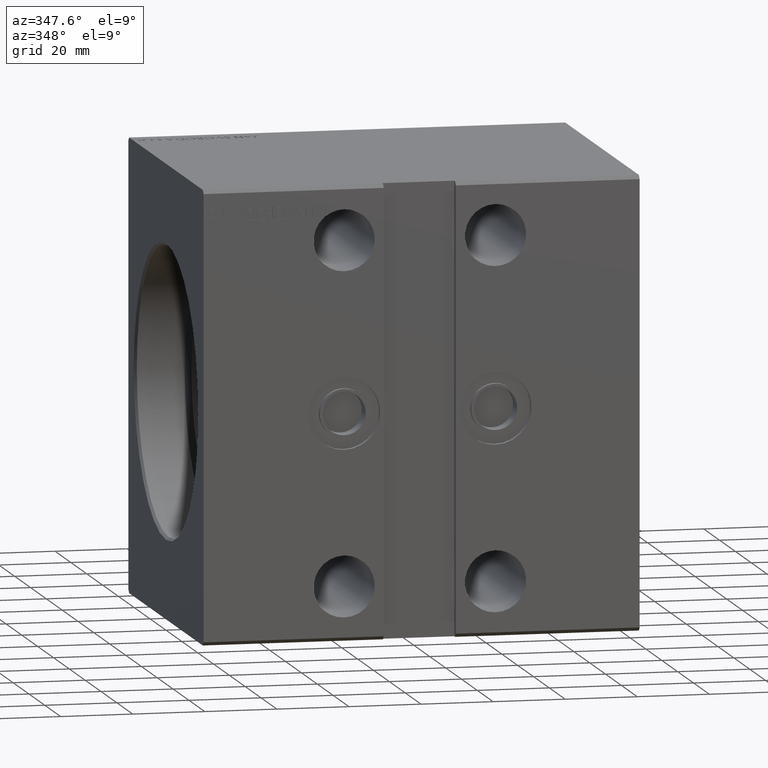
[diagram: clean part render]
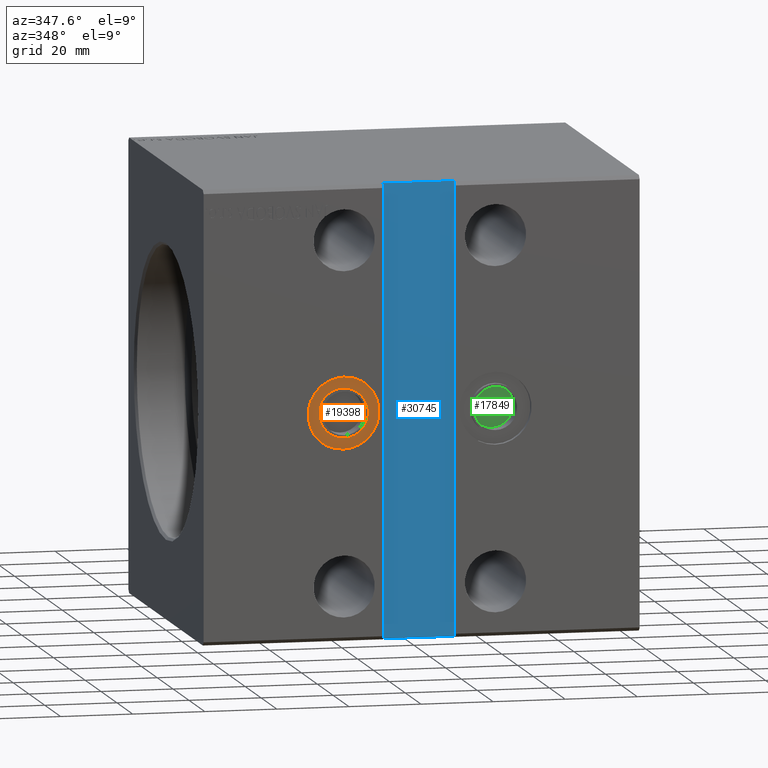
[diagram: same view with three faces highlighted in distinct colors, each labeled with its STEP entity id]
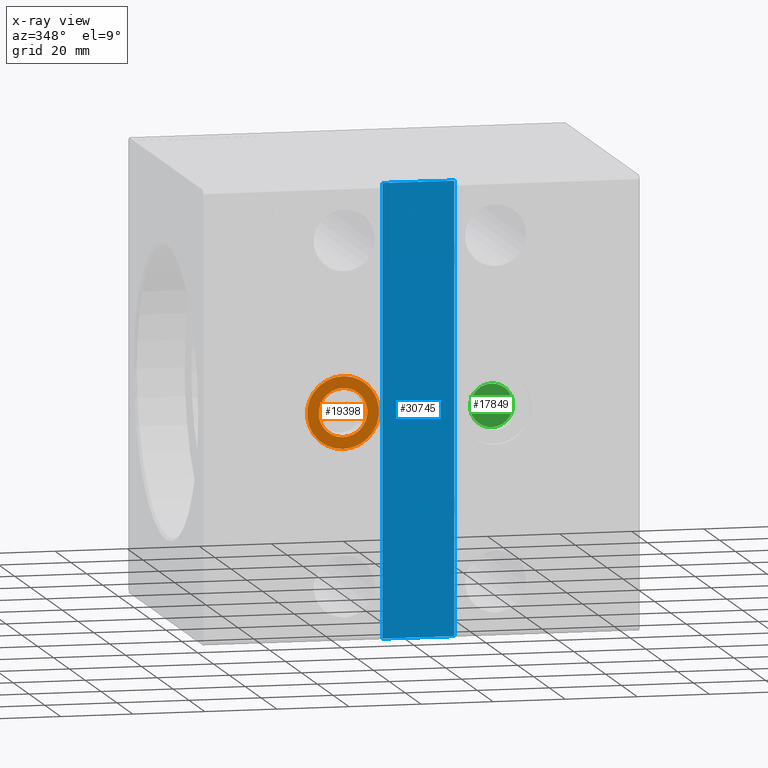
[diagram: x-ray of the same camera — body ghosted, the three highlighted faces saturated]
A machine part, auxiliary view with three faces highlighted in distinct colors.
The next image is the same camera in x-ray (body ghosted, the three faces saturated) — at least one of them is partly hidden behind the body in this view.
Their STEP definitions:

[orange] entity #19398 — the highlighted planar face has unit normal (0, -1, -0).
#622 = VERTEX_POINT ( 'NONE', #8595 ) ;
#3005 = ORIENTED_EDGE ( 'NONE', *, *, #29788, .T. ) ;
#4802 = CARTESIAN_POINT ( 'NONE',  ( 39.00000000000000000, -46.10000000000000853, -10.00000000000001599 ) ) ;
#5205 = CARTESIAN_POINT ( 'NONE',  ( 39.00000000000000000, -46.10000000000000853, -1.490075753240132338E-14 ) ) ;
#5965 = ORIENTED_EDGE ( 'NONE', *, *, #36253, .T. ) ;
#6769 = VERTEX_POINT ( 'NONE', #24216 ) ;
#8158 = CARTESIAN_POINT ( 'NONE',  ( 39.00000000000000000, -46.10000000000000853, -1.490075753240132338E-14 ) ) ;
#8595 = CARTESIAN_POINT ( 'NONE',  ( 39.00000000000000000, -46.10000000000000853, 9.999999999999984013 ) ) ;
#8985 = DIRECTION ( 'NONE',  ( 0.000000000000000000, -1.000000000000000000, -5.507058653894625853E-17 ) ) ;
#11080 = CARTESIAN_POINT ( 'NONE',  ( 39.00000000000000000, -46.10000000000000853, -1.490075753240132338E-14 ) ) ;
#11364 = DIRECTION ( 'NONE',  ( 0.000000000000000000, -1.000000000000000000, -5.507058653894625853E-17 ) ) ;
#11554 = DIRECTION ( 'NONE',  ( 0.000000000000000000, 0.000000000000000000, -1.000000000000000000 ) ) ;
#11699 = DIRECTION ( 'NONE',  ( 0.000000000000000000, -1.000000000000000000, -5.507058653894625853E-17 ) ) ;
#12940 = AXIS2_PLACEMENT_3D ( 'NONE', #8158, #8985, #11554 ) ;
#13518 = ORIENTED_EDGE ( 'NONE', *, *, #22660, .F. ) ;
#13690 = DIRECTION ( 'NONE',  ( 0.000000000000000000, 0.000000000000000000, -1.000000000000000000 ) ) ;
#14102 = CARTESIAN_POINT ( 'NONE',  ( 39.00000000000000000, -46.10000000000000853, -1.490075753240132338E-14 ) ) ;
#14881 = DIRECTION ( 'NONE',  ( 0.000000000000000000, -1.000000000000000000, -5.507058653894625853E-17 ) ) ;
#15317 = FACE_BOUND ( 'NONE', #18952, .T. ) ;
#15519 = DIRECTION ( 'NONE',  ( 0.000000000000000000, 5.507058653894625853E-17, -1.000000000000000000 ) ) ;
#17676 = CIRCLE ( 'NONE', #12940, 10.00000000000000000 ) ;
#17809 = CIRCLE ( 'NONE', #33401, 10.00000000000000000 ) ;
#18134 = DIRECTION ( 'NONE',  ( 0.000000000000000000, 0.000000000000000000, -1.000000000000000000 ) ) ;
#18701 = DIRECTION ( 'NONE',  ( 0.000000000000000000, -1.000000000000000000, -5.507058653894625853E-17 ) ) ;
#18952 = EDGE_LOOP ( 'NONE', ( #29612, #13518 ) ) ;
#19398 = ADVANCED_FACE ( 'NONE', ( #15317, #34858 ), #38251, .T. ) ;
#19989 = CIRCLE ( 'NONE', #30822, 6.750000000000000000 ) ;
#22175 = EDGE_CURVE ( 'NONE', #24519, #6769, #19989, .T. ) ;
#22660 = EDGE_CURVE ( 'NONE', #6769, #24519, #28119, .T. ) ;
#24216 = CARTESIAN_POINT ( 'NONE',  ( 39.00000000000000000, -46.10000000000000853, 6.749999999999984901 ) ) ;
#24519 = VERTEX_POINT ( 'NONE', #31238 ) ;
#27276 = VERTEX_POINT ( 'NONE', #4802 ) ;
#27829 = DIRECTION ( 'NONE',  ( 0.000000000000000000, 0.000000000000000000, -1.000000000000000000 ) ) ;
#28119 = CIRCLE ( 'NONE', #35584, 6.750000000000000000 ) ;
#28471 = CARTESIAN_POINT ( 'NONE',  ( 39.00000000000000000, -46.10000000000000853, -1.490075753240132338E-14 ) ) ;
#29612 = ORIENTED_EDGE ( 'NONE', *, *, #22175, .F. ) ;
#29788 = EDGE_CURVE ( 'NONE', #622, #27276, #17809, .T. ) ;
#30822 = AXIS2_PLACEMENT_3D ( 'NONE', #5205, #11364, #18134 ) ;
#31238 = CARTESIAN_POINT ( 'NONE',  ( 39.00000000000000000, -46.10000000000000853, -6.750000000000015099 ) ) ;
#33401 = AXIS2_PLACEMENT_3D ( 'NONE', #11080, #14881, #27829 ) ;
#34355 = EDGE_LOOP ( 'NONE', ( #5965, #3005 ) ) ;
#34858 = FACE_OUTER_BOUND ( 'NONE', #34355, .T. ) ;
#34859 = AXIS2_PLACEMENT_3D ( 'NONE', #28471, #18701, #15519 ) ;
#35584 = AXIS2_PLACEMENT_3D ( 'NONE', #14102, #11699, #13690 ) ;
#36253 = EDGE_CURVE ( 'NONE', #27276, #622, #17676, .T. ) ;
#38251 = PLANE ( 'NONE',  #34859 ) ;

[blue] entity #30745 — the highlighted planar face has unit normal (0, -1, 0).
#621 = FACE_OUTER_BOUND ( 'NONE', #8068, .T. ) ;
#1498 = CARTESIAN_POINT ( 'NONE',  ( 70.00000000000000000, -45.50000000000000711, 62.49999999999997868 ) ) ;
#2299 = VERTEX_POINT ( 'NONE', #16675 ) ;
#5445 = ORIENTED_EDGE ( 'NONE', *, *, #16736, .T. ) ;
#8068 = EDGE_LOOP ( 'NONE', ( #19661, #20048, #5445, #17072 ) ) ;
#8727 = DIRECTION ( 'NONE',  ( 1.000000000000000000, 0.000000000000000000, 0.000000000000000000 ) ) ;
#10192 = PLANE ( 'NONE',  #24607 ) ;
#10410 = CARTESIAN_POINT ( 'NONE',  ( 0.000000000000000000, -45.50000000000000711, 1.101411730778925047E-16 ) ) ;
#10618 = VERTEX_POINT ( 'NONE', #31690 ) ;
#10671 = CARTESIAN_POINT ( 'NONE',  ( 50.00000000000000000, -45.50000000000000711, -62.50000000000002842 ) ) ;
#12799 = EDGE_CURVE ( 'NONE', #41666, #2299, #21506, .T. ) ;
#14437 = VECTOR ( 'NONE', #31825, 1000.000000000000000 ) ;
#15927 = VECTOR ( 'NONE', #8727, 1000.000000000000000 ) ;
#16536 = LINE ( 'NONE', #35444, #14437 ) ;
#16675 = CARTESIAN_POINT ( 'NONE',  ( 49.99999999999998579, -45.50000000000000711, 62.49999999999997868 ) ) ;
#16736 = EDGE_CURVE ( 'NONE', #2299, #31175, #16536, .T. ) ;
#17072 = ORIENTED_EDGE ( 'NONE', *, *, #24512, .T. ) ;
#18489 = CARTESIAN_POINT ( 'NONE',  ( 50.00000000000000000, -45.50000000000000711, -62.50000000000002842 ) ) ;
#19661 = ORIENTED_EDGE ( 'NONE', *, *, #26924, .T. ) ;
#20048 = ORIENTED_EDGE ( 'NONE', *, *, #12799, .T. ) ;
#20446 = VECTOR ( 'NONE', #29956, 1000.000000000000000 ) ;
#21024 = LINE ( 'NONE', #1498, #20446 ) ;
#21506 = LINE ( 'NONE', #40862, #34707 ) ;
#23132 = DIRECTION ( 'NONE',  ( 0.000000000000000000, -1.000000000000000000, 0.000000000000000000 ) ) ;
#24512 = EDGE_CURVE ( 'NONE', #31175, #10618, #25496, .T. ) ;
#24607 = AXIS2_PLACEMENT_3D ( 'NONE', #10410, #23132, #33333 ) ;
#24911 = DIRECTION ( 'NONE',  ( -1.000000000000000000, -0.000000000000000000, -0.000000000000000000 ) ) ;
#25463 = CARTESIAN_POINT ( 'NONE',  ( 70.00000000000000000, -45.50000000000000711, 62.49999999999997868 ) ) ;
#25496 = LINE ( 'NONE', #18489, #15927 ) ;
#26924 = EDGE_CURVE ( 'NONE', #10618, #41666, #21024, .T. ) ;
#29956 = DIRECTION ( 'NONE',  ( -1.110223024625156540E-16, -0.000000000000000000, 1.000000000000000000 ) ) ;
#30745 = ADVANCED_FACE ( 'NONE', ( #621 ), #10192, .T. ) ;
#31175 = VERTEX_POINT ( 'NONE', #10671 ) ;
#31690 = CARTESIAN_POINT ( 'NONE',  ( 70.00000000000001421, -45.50000000000000711, -62.50000000000002842 ) ) ;
#31825 = DIRECTION ( 'NONE',  ( 1.110223024625156540E-16, 0.000000000000000000, -1.000000000000000000 ) ) ;
#33333 = DIRECTION ( 'NONE',  ( 0.000000000000000000, -0.000000000000000000, -1.000000000000000000 ) ) ;
#34707 = VECTOR ( 'NONE', #24911, 1000.000000000000000 ) ;
#35444 = CARTESIAN_POINT ( 'NONE',  ( 49.99999999999998579, -45.50000000000000711, 62.49999999999997868 ) ) ;
#40862 = CARTESIAN_POINT ( 'NONE',  ( 49.99999999999998579, -45.50000000000000711, 62.49999999999997868 ) ) ;
#41666 = VERTEX_POINT ( 'NONE', #25463 ) ;

[green] entity #17849 — the highlighted planar face has unit normal (0, -1, -0).
#787 = ORIENTED_EDGE ( 'NONE', *, *, #9800, .T. ) ;
#2449 = CARTESIAN_POINT ( 'NONE',  ( 81.00000000000001421, -42.50000000000000711, -9.558986864442232070E-15 ) ) ;
#4162 = CIRCLE ( 'NONE', #36010, 6.000000000000002665 ) ;
#4233 = EDGE_CURVE ( 'NONE', #17861, #21610, #31127, .T. ) ;
#5237 = CARTESIAN_POINT ( 'NONE',  ( 81.00000000000001421, -42.50000000000000711, -6.000000000000012434 ) ) ;
#7407 = AXIS2_PLACEMENT_3D ( 'NONE', #37534, #37742, #11428 ) ;
#9042 = DIRECTION ( 'NONE',  ( 0.000000000000000000, -1.000000000000000000, -5.507058653894625853E-17 ) ) ;
#9800 = EDGE_CURVE ( 'NONE', #21610, #17861, #4162, .T. ) ;
#11428 = DIRECTION ( 'NONE',  ( 0.000000000000000000, 0.000000000000000000, -1.000000000000000000 ) ) ;
#11861 = DIRECTION ( 'NONE',  ( 0.000000000000000000, 0.000000000000000000, -1.000000000000000000 ) ) ;
#15206 = FACE_OUTER_BOUND ( 'NONE', #25934, .T. ) ;
#17849 = ADVANCED_FACE ( 'NONE', ( #15206 ), #18591, .T. ) ;
#17861 = VERTEX_POINT ( 'NONE', #5237 ) ;
#18169 = DIRECTION ( 'NONE',  ( 0.000000000000000000, 5.507058653894625853E-17, -1.000000000000000000 ) ) ;
#18591 = PLANE ( 'NONE',  #39528 ) ;
#21610 = VERTEX_POINT ( 'NONE', #34696 ) ;
#25630 = ORIENTED_EDGE ( 'NONE', *, *, #4233, .T. ) ;
#25934 = EDGE_LOOP ( 'NONE', ( #25630, #787 ) ) ;
#31127 = CIRCLE ( 'NONE', #7407, 6.000000000000002665 ) ;
#31589 = DIRECTION ( 'NONE',  ( 0.000000000000000000, -1.000000000000000000, -5.507058653894625853E-17 ) ) ;
#34696 = CARTESIAN_POINT ( 'NONE',  ( 81.00000000000001421, -42.50000000000000711, 5.999999999999992895 ) ) ;
#36010 = AXIS2_PLACEMENT_3D ( 'NONE', #37957, #31589, #11861 ) ;
#37534 = CARTESIAN_POINT ( 'NONE',  ( 81.00000000000001421, -42.50000000000000711, -9.558986864442232070E-15 ) ) ;
#37742 = DIRECTION ( 'NONE',  ( 0.000000000000000000, -1.000000000000000000, -5.507058653894625853E-17 ) ) ;
#37957 = CARTESIAN_POINT ( 'NONE',  ( 81.00000000000001421, -42.50000000000000711, -9.558986864442232070E-15 ) ) ;
#39528 = AXIS2_PLACEMENT_3D ( 'NONE', #2449, #9042, #18169 ) ;